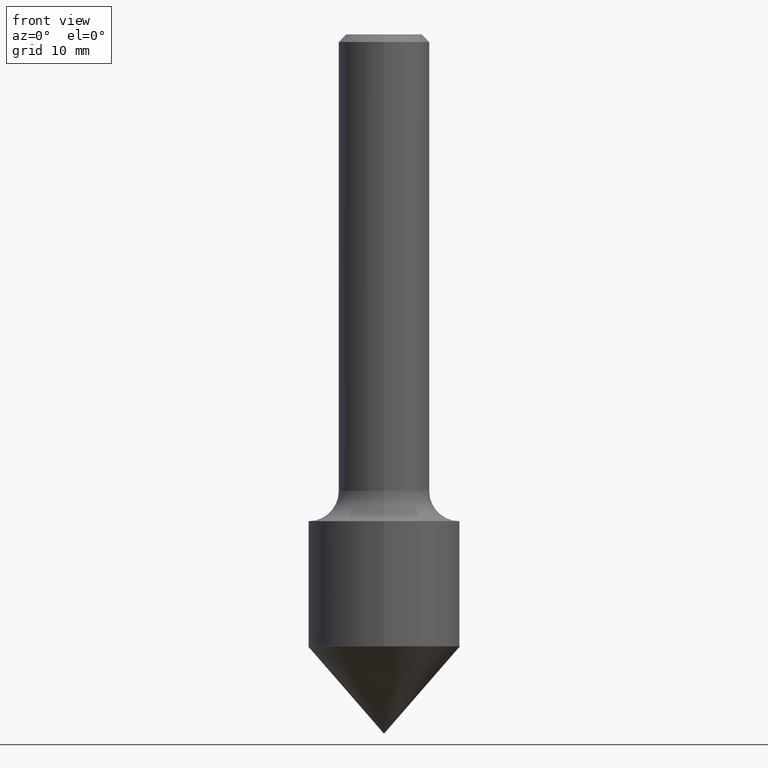
[diagram: clean part render]
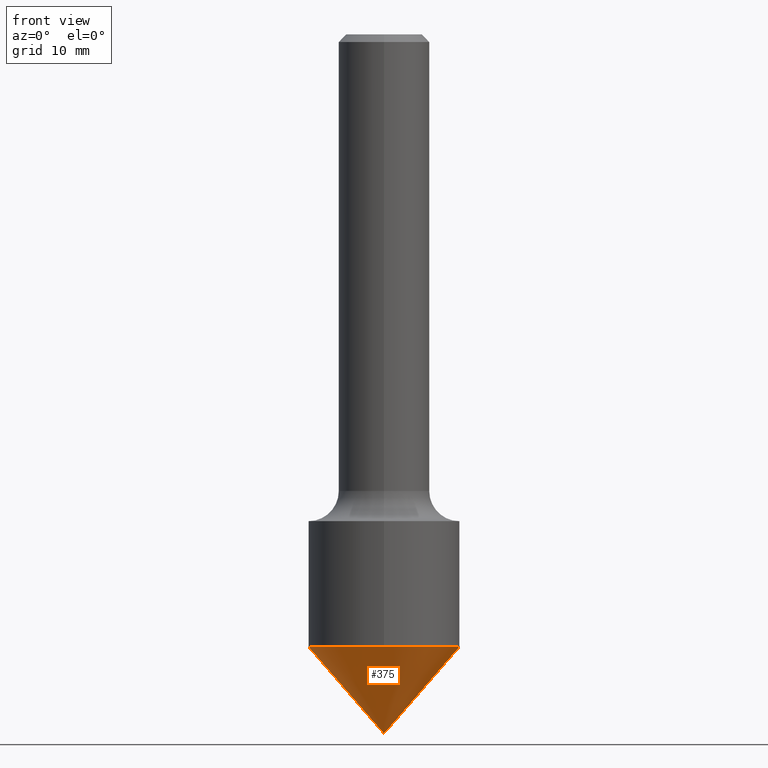
[diagram: same view with one face highlighted and labeled with its STEP entity id]
A machine part, front view. The second image highlights one B-rep face of the part: STEP entity #375.
In plain terms, the highlighted conical surface has half-angle 41 deg.
Its self-contained STEP definition (entity closure, byte-faithful):
#24 = CARTESIAN_POINT ( 'NONE',  ( 6.904546971929095290E-29, -1.025366750120264811E-14, -2.879999999999999893 ) ) ;
#37 = LINE ( 'NONE', #371, #454 ) ;
#39 = VERTEX_POINT ( 'NONE', #215 ) ;
#52 = EDGE_CURVE ( 'NONE', #302, #39, #91, .T. ) ;
#74 = DIRECTION ( 'NONE',  ( -2.445468806185136597E-29, 3.491481338843145583E-15, 1.000000000000000000 ) ) ;
#91 = LINE ( 'NONE', #169, #319 ) ;
#108 = DIRECTION ( 'NONE',  ( -2.445468806185136597E-29, 3.491481338843145583E-15, 1.000000000000000000 ) ) ;
#117 = EDGE_LOOP ( 'NONE', ( #253, #332, #459 ) ) ;
#137 = AXIS2_PLACEMENT_3D ( 'NONE', #451, #108, #261 ) ;
#169 = CARTESIAN_POINT ( 'NONE',  ( -0.3124999999999996669, -6.579867135803297740E-15, -2.520509872743433188 ) ) ;
#215 = CARTESIAN_POINT ( 'NONE',  ( -0.3124999999999996669, -6.618137348276653262E-15, -2.520509872743433188 ) ) ;
#253 = ORIENTED_EDGE ( 'NONE', *, *, #52, .F. ) ;
#261 = DIRECTION ( 'NONE',  ( 1.000000000000000000, -6.982962677686264344E-15, 0.000000000000000000 ) ) ;
#288 = CONICAL_SURFACE ( 'NONE', #137, 0.3124999999999996669, 0.7155849933176725575 ) ;
#297 = DIRECTION ( 'NONE',  ( 1.000000000000000000, -6.982962677686264344E-15, 0.000000000000000000 ) ) ;
#302 = VERTEX_POINT ( 'NONE', #24 ) ;
#319 = VECTOR ( 'NONE', #364, 39.37007874015748143 ) ;
#332 = ORIENTED_EDGE ( 'NONE', *, *, #381, .T. ) ;
#334 = CARTESIAN_POINT ( 'NONE',  ( 6.163828269475734229E-29, -8.800313185053610032E-15, -2.520509872743433188 ) ) ;
#364 = DIRECTION ( 'NONE',  ( -0.6560590289905053885, 7.296634188384243692E-15, 0.7547095802227736794 ) ) ;
#371 = CARTESIAN_POINT ( 'NONE',  ( 0.3124999999999996669, -1.098248902183056522E-14, -2.520509872743433188 ) ) ;
#375 = ADVANCED_FACE ( 'NONE', ( #378 ), #288, .T. ) ;
#378 = FACE_OUTER_BOUND ( 'NONE', #117, .T. ) ;
#381 = EDGE_CURVE ( 'NONE', #302, #382, #37, .T. ) ;
#382 = VERTEX_POINT ( 'NONE', #407 ) ;
#407 = CARTESIAN_POINT ( 'NONE',  ( 0.3124999999999996669, -1.094421880935721049E-14, -2.520509872743433188 ) ) ;
#412 = DIRECTION ( 'NONE',  ( 0.6560590289905053885, -1.946181298205833458E-15, 0.7547095802227736794 ) ) ;
#413 = CIRCLE ( 'NONE', #489, 0.3124999999999996669 ) ;
#441 = EDGE_CURVE ( 'NONE', #39, #382, #413, .T. ) ;
#451 = CARTESIAN_POINT ( 'NONE',  ( 6.163828269475734229E-29, -8.800313185053610032E-15, -2.520509872743433188 ) ) ;
#454 = VECTOR ( 'NONE', #412, 39.37007874015748143 ) ;
#459 = ORIENTED_EDGE ( 'NONE', *, *, #441, .F. ) ;
#489 = AXIS2_PLACEMENT_3D ( 'NONE', #334, #74, #297 ) ;